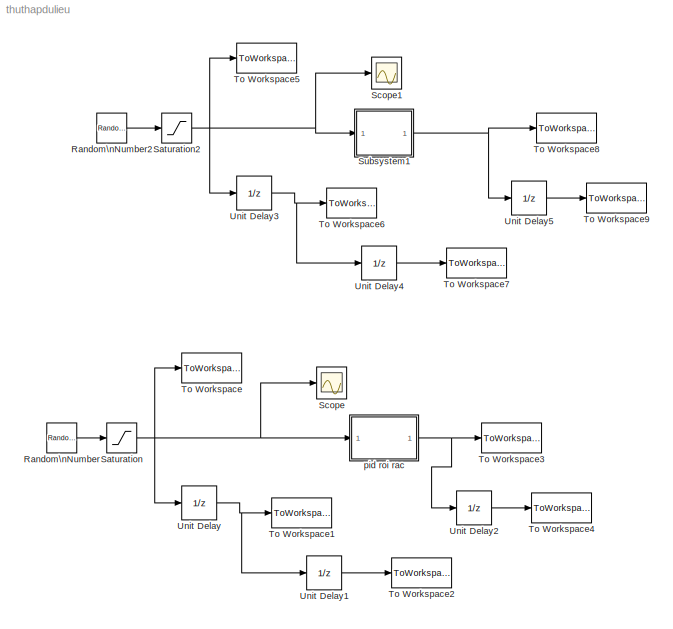
MODEL thuthapdulieu
KIND model
BLOCK [RandomNumber] Random\nNumber
  Commented = on
  SID = 10
  SampleTime = 0.1
  Seed = 99
  Variance = 600
BLOCK [RandomNumber] Random\nNumber2
  SID = 22
  SampleTime = 0.1
  Variance = 200
BLOCK [Saturate] Saturation
  Commented = on
  InputPortMap = u0
  LowerLimit = -50
  Ports = [1, 1]
  SID = 21
  UpperLimit = 50
BLOCK [Saturate] Saturation2
  InputPortMap = u0
  LowerLimit = -pi/2-0.1
  Ports = [1, 1]
  SID = 23
  UpperLimit = pi/2+0.1
BLOCK [Scope] Scope
  Commented = on
  NumInputPorts = 1
  Ports = [1]
  SID = 20
  ScopeSpecificationString = Simulink.scopes.TimeScopeBlockCfg('CurrentConfiguration', extmgr.ConfigurationSet(extmgr.Configuration('Core','General UI',true),extmgr.Configuration('Core','Source UI',true),extmgr.Configuration('Sources','WiredSimulink',true),extmgr.Configuration('Visuals','Time Domain',true,'SerializedDisplays',{struct('MinYLimReal','-62.5','MaxYLimReal','62.5','YLabelReal','','MinYLimMag','0.00000','MaxYLimMag...<+1339ch>
BLOCK [Scope] Scope1
  NumInputPorts = 1
  Ports = [1]
  SID = 24
  ScopeSpecificationString = Simulink.scopes.TimeScopeBlockCfg('CurrentConfiguration', extmgr.ConfigurationSet(extmgr.Configuration('Core','General UI',true),extmgr.Configuration('Core','Source UI',true),extmgr.Configuration('Sources','WiredSimulink',true,'DataLoggingVariableName','ScopeData1'),extmgr.Configuration('Visuals','Time Domain',true,'SerializedDisplays',{struct('MinYLimReal','-2.0885','MaxYLimReal','2.0885','YLabel...<+1391ch>
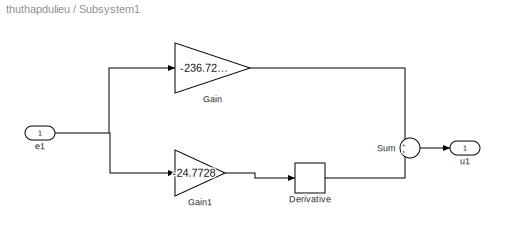
BLOCK [SubSystem] Subsystem1
  Ports = [1, 1]
  RequestExecContextInheritance = off
  SID = 40
  Variant = off
BLOCK [Derivative] Subsystem1/Derivative
  SID = 42
BLOCK [Gain] Subsystem1/Gain
  Gain = -236.7253
  OutDataTypeStr = Inherit: Inherit via internal rule
  ParamDataTypeStr = Inherit: Inherit via internal rule
  SID = 43
  SaturateOnIntegerOverflow = off
BLOCK [Gain] Subsystem1/Gain1
  Gain = -24.7728
  OutDataTypeStr = Inherit: Inherit via internal rule
  ParamDataTypeStr = Inherit: Inherit via internal rule
  SID = 44
  SaturateOnIntegerOverflow = off
BLOCK [Sum] Subsystem1/Sum
  IconShape = round
  InputSameDT = off
  OutDataTypeStr = Inherit: Inherit via internal rule
  Ports = [2, 1]
  SID = 45
  SaturateOnIntegerOverflow = off
BLOCK [Inport] Subsystem1/e1
  IconDisplay = Port number
  SID = 41
BLOCK [Outport] Subsystem1/u1
  IconDisplay = Port number
  SID = 46
BLOCK [ToWorkspace] To Workspace
  Commented = on
  FixptAsFi = on
  MaxDataPoints = inf
  Ports = [1]
  SID = 13
  SampleTime = -1
  Save2DSignal = 3-D array (concatenate along third dimension)
  VariableName = e
BLOCK [ToWorkspace] To Workspace1
  Commented = on
  FixptAsFi = on
  MaxDataPoints = inf
  Ports = [1]
  SID = 14
  SampleTime = -1
  Save2DSignal = 3-D array (concatenate along third dimension)
  VariableName = e_before1
BLOCK [ToWorkspace] To Workspace2
  Commented = on
  FixptAsFi = on
  MaxDataPoints = inf
  Ports = [1]
  SID = 16
  SampleTime = -1
  Save2DSignal = 3-D array (concatenate along third dimension)
  VariableName = e_before2
BLOCK [ToWorkspace] To Workspace3
  Commented = on
  FixptAsFi = on
  MaxDataPoints = inf
  Ports = [1]
  SID = 17
  SampleTime = -1
  Save2DSignal = 3-D array (concatenate along third dimension)
  VariableName = u
BLOCK [ToWorkspace] To Workspace4
  Commented = on
  FixptAsFi = on
  MaxDataPoints = inf
  Ports = [1]
  SID = 19
  SampleTime = -1
  Save2DSignal = 3-D array (concatenate along third dimension)
  VariableName = u_before
BLOCK [ToWorkspace] To Workspace5
  FixptAsFi = on
  MaxDataPoints = inf
  Ports = [1]
  SID = 32
  SampleTime = -1
  Save2DSignal = 3-D array (concatenate along third dimension)
  VariableName = e
BLOCK [ToWorkspace] To Workspace6
  FixptAsFi = on
  MaxDataPoints = inf
  Ports = [1]
  SID = 33
  SampleTime = -1
  Save2DSignal = 3-D array (concatenate along third dimension)
  VariableName = e_before1
BLOCK [ToWorkspace] To Workspace7
  FixptAsFi = on
  MaxDataPoints = inf
  Ports = [1]
  SID = 34
  SampleTime = -1
  Save2DSignal = 3-D array (concatenate along third dimension)
  VariableName = e_before2
BLOCK [ToWorkspace] To Workspace8
  FixptAsFi = on
  MaxDataPoints = inf
  Ports = [1]
  SID = 35
  SampleTime = -1
  Save2DSignal = 3-D array (concatenate along third dimension)
  VariableName = u
BLOCK [ToWorkspace] To Workspace9
  FixptAsFi = on
  MaxDataPoints = inf
  Ports = [1]
  SID = 36
  SampleTime = -1
  Save2DSignal = 3-D array (concatenate along third dimension)
  VariableName = u_before
BLOCK [UnitDelay] Unit Delay
  Commented = on
  InputProcessing = Elements as channels (sample based)
  SID = 12
  SampleTime = -1
BLOCK [UnitDelay] Unit Delay1
  Commented = on
  InputProcessing = Elements as channels (sample based)
  SID = 15
  SampleTime = -1
BLOCK [UnitDelay] Unit Delay2
  Commented = on
  InputProcessing = Elements as channels (sample based)
  SID = 18
  SampleTime = -1
BLOCK [UnitDelay] Unit Delay3
  InputProcessing = Elements as channels (sample based)
  SID = 37
  SampleTime = -1
BLOCK [UnitDelay] Unit Delay4
  InputProcessing = Elements as channels (sample based)
  SID = 38
  SampleTime = -1
BLOCK [UnitDelay] Unit Delay5
  InputProcessing = Elements as channels (sample based)
  SID = 39
  SampleTime = -1
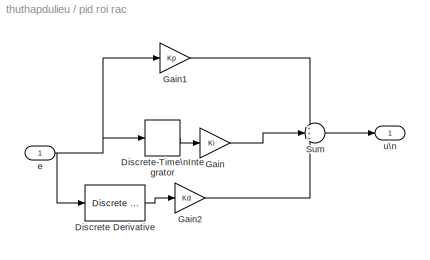
BLOCK [SubSystem] pid roi rac
  Commented = on
  Ports = [1, 1]
  RequestExecContextInheritance = off
  SID = 1
  Variant = off
BLOCK [Reference] pid roi rac/Discrete Derivative  REF=simulink/Discrete/Discrete Derivative
  DoSatur = off
  ICPrevScaledInput = 0.0
  InputProcessing = Elements as channels (sample based)
  LockScale = off
  OutDataType = fixdt(1, 16)
  OutDataTypeStr = Inherit: Inherit via internal rule
  OutMax = []
  OutMin = []
  OutScaling = 2^-10
  OutputDataTypeScalingMode = Inherit via internal rule
  Ports = [1, 1]
  RndMeth = Floor
  SID = 3
  SourceBlock = simulink/Discrete/Discrete Derivative
  SourceProductBaseCode = SL
  SourceProductName = Simulink
  SourceType = Discrete Derivative
  gainval = 1.0
BLOCK [DiscreteIntegrator] pid roi rac/Discrete-Time\nIntegrator
  ICPrevOutput = DiscIntNeverNeededParam
  ICPrevScaledInput = DiscIntNeverNeededParam
  Ports = [1, 1]
  SID = 4
  SampleTime = -1
BLOCK [Gain] pid roi rac/Gain
  Gain = Ki
  OutDataTypeStr = Inherit: Inherit via internal rule
  ParamDataTypeStr = Inherit: Inherit via internal rule
  SID = 5
  SaturateOnIntegerOverflow = off
BLOCK [Gain] pid roi rac/Gain1
  Gain = Kp
  OutDataTypeStr = Inherit: Inherit via internal rule
  ParamDataTypeStr = Inherit: Inherit via internal rule
  SID = 6
  SaturateOnIntegerOverflow = off
BLOCK [Gain] pid roi rac/Gain2
  Gain = Kd
  OutDataTypeStr = Inherit: Inherit via internal rule
  ParamDataTypeStr = Inherit: Inherit via internal rule
  SID = 7
  SaturateOnIntegerOverflow = off
BLOCK [Sum] pid roi rac/Sum
  IconShape = round
  InputSameDT = off
  Inputs = +++
  OutDataTypeStr = Inherit: Inherit via internal rule
  Ports = [3, 1]
  SID = 8
  SaturateOnIntegerOverflow = off
BLOCK [Inport] pid roi rac/e
  IconDisplay = Port number
  SID = 2
BLOCK [Outport] pid roi rac/u\n
  IconDisplay = Port number
  SID = 9
LINE Random\nNumber2:1 -> Saturation2:1
LINE Random\nNumber:1 -> Saturation:1
NET Saturation2:1 -> Scope1:1, Subsystem1:1, To Workspace5:1, Unit Delay3:1
NET Saturation:1 -> Scope:1, To Workspace:1, Unit Delay:1, pid roi rac:1
LINE Subsystem1/Derivative:1 -> Subsystem1/Sum:2
LINE Subsystem1/Gain1:1 -> Subsystem1/Derivative:1
LINE Subsystem1/Gain:1 -> Subsystem1/Sum:1
LINE Subsystem1/Sum:1 -> Subsystem1/u1:1
NET Subsystem1/e1:1 -> Subsystem1/Gain1:1, Subsystem1/Gain:1
NET Subsystem1:1 -> To Workspace8:1, Unit Delay5:1
LINE Unit Delay1:1 -> To Workspace2:1
LINE Unit Delay2:1 -> To Workspace4:1
NET Unit Delay3:1 -> To Workspace6:1, Unit Delay4:1
LINE Unit Delay4:1 -> To Workspace7:1
LINE Unit Delay5:1 -> To Workspace9:1
NET Unit Delay:1 -> To Workspace1:1, Unit Delay1:1
LINE pid roi rac/Discrete Derivative:1 -> pid roi rac/Gain2:1
LINE pid roi rac/Discrete-Time\nIntegrator:1 -> pid roi rac/Gain:1
LINE pid roi rac/Gain1:1 -> pid roi rac/Sum:1
LINE pid roi rac/Gain2:1 -> pid roi rac/Sum:3
LINE pid roi rac/Gain:1 -> pid roi rac/Sum:2
LINE pid roi rac/Sum:1 -> pid roi rac/u\n:1
NET pid roi rac/e:1 -> pid roi rac/Discrete Derivative:1, pid roi rac/Discrete-Time\nIntegrator:1, pid roi rac/Gain1:1
NET pid roi rac:1 -> To Workspace3:1, Unit Delay2:1
note: NET lines group one-source signal fan-out (src -> all destinations, sorted); 1:1 wires keep LINE
